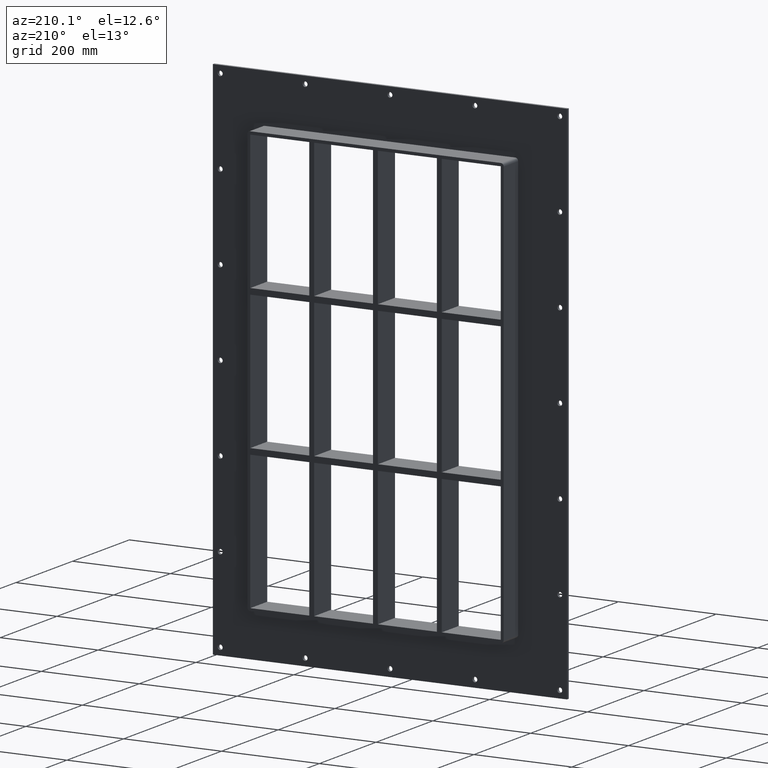
[diagram: clean part render]
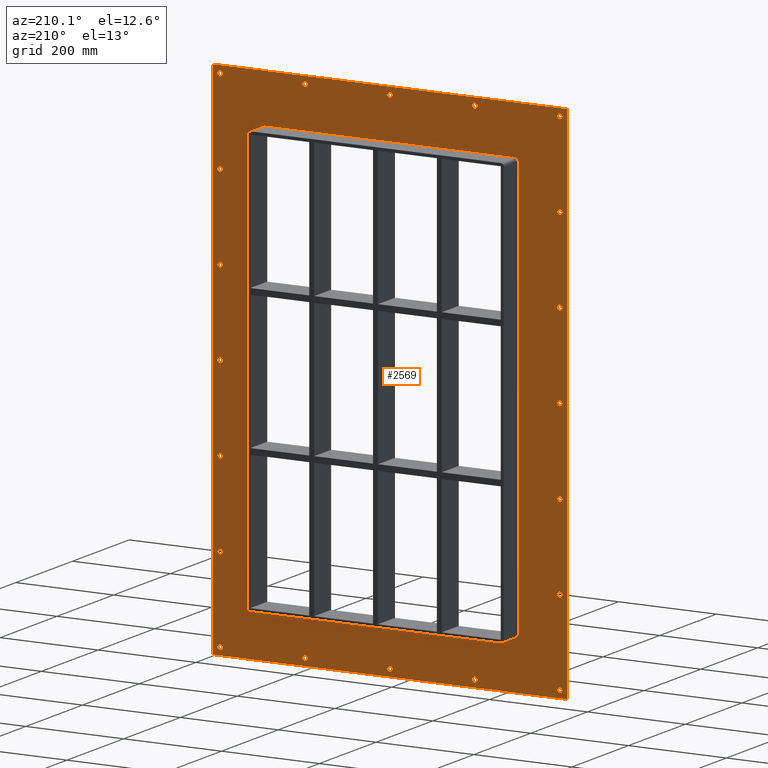
[diagram: same view with one face highlighted and labeled with its STEP entity id]
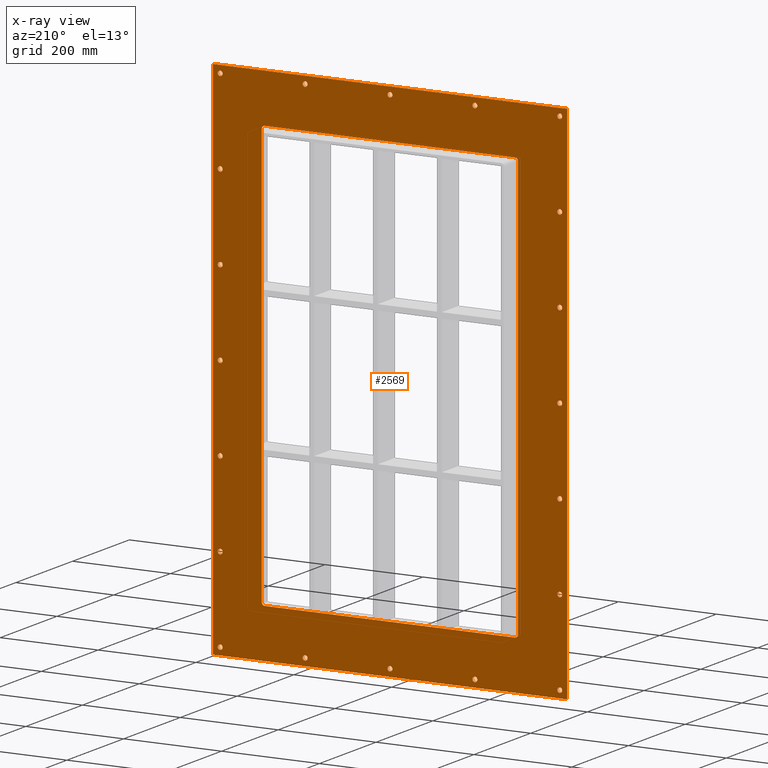
[diagram: x-ray of the same camera — body ghosted, the highlighted face saturated]
A machine part, auxiliary view. The second image highlights one B-rep face of the part: STEP entity #2569.
The next image is the same camera in x-ray: the body ghosted, the highlighted face saturated — about 0% of this face is hidden behind the body in this view.
In plain terms, the highlighted planar face has unit normal (0, 1, 0).
Its self-contained STEP definition (entity closure, byte-faithful):
#73=CARTESIAN_POINT('',(-352.0,5.999999999999943,-520.00000000000011));
#74=VERTEX_POINT('',#73);
#75=CARTESIAN_POINT('',(-347.0,5.999999999999943,-520.00000000000011));
#76=DIRECTION('',(0.0,-1.0,0.0));
#77=DIRECTION('',(1.0,0.0,0.0));
#78=AXIS2_PLACEMENT_3D('',#75,#76,#77);
#79=CIRCLE('',#78,5.0);
#80=EDGE_CURVE('',#74,#74,#79,.T.);
#101=CARTESIAN_POINT('',(342.0,5.999999999999943,-346.70000000000005));
#102=VERTEX_POINT('',#101);
#103=CARTESIAN_POINT('',(347.0,5.999999999999943,-346.70000000000005));
#104=DIRECTION('',(0.0,-1.0,0.0));
#105=DIRECTION('',(1.0,0.0,0.0));
#106=AXIS2_PLACEMENT_3D('',#103,#104,#105);
#107=CIRCLE('',#106,5.0);
#108=EDGE_CURVE('',#102,#102,#107,.T.);
#129=CARTESIAN_POINT('',(-352.0,5.999999999999943,-346.70000000000005));
#130=VERTEX_POINT('',#129);
#131=CARTESIAN_POINT('',(-347.0,5.999999999999943,-346.70000000000005));
#132=DIRECTION('',(0.0,-1.0,0.0));
#133=DIRECTION('',(1.0,0.0,0.0));
#134=AXIS2_PLACEMENT_3D('',#131,#132,#133);
#135=CIRCLE('',#134,5.0);
#136=EDGE_CURVE('',#130,#130,#135,.T.);
#157=CARTESIAN_POINT('',(342.0,5.999999999999943,-173.40000000000006));
#158=VERTEX_POINT('',#157);
#159=CARTESIAN_POINT('',(347.0,5.999999999999943,-173.40000000000006));
#160=DIRECTION('',(0.0,-1.0,0.0));
#161=DIRECTION('',(1.0,0.0,0.0));
#162=AXIS2_PLACEMENT_3D('',#159,#160,#161);
#163=CIRCLE('',#162,5.0);
#164=EDGE_CURVE('',#158,#158,#163,.T.);
#185=CARTESIAN_POINT('',(-352.0,5.999999999999943,-173.40000000000006));
#186=VERTEX_POINT('',#185);
#187=CARTESIAN_POINT('',(-347.0,5.999999999999943,-173.40000000000006));
#188=DIRECTION('',(0.0,-1.0,0.0));
#189=DIRECTION('',(1.0,0.0,0.0));
#190=AXIS2_PLACEMENT_3D('',#187,#188,#189);
#191=CIRCLE('',#190,5.0);
#192=EDGE_CURVE('',#186,#186,#191,.T.);
#213=CARTESIAN_POINT('',(342.0,5.999999999999943,-0.100000000000087));
#214=VERTEX_POINT('',#213);
#215=CARTESIAN_POINT('',(347.0,5.999999999999943,-0.100000000000087));
#216=DIRECTION('',(0.0,-1.0,0.0));
#217=DIRECTION('',(1.0,0.0,0.0));
#218=AXIS2_PLACEMENT_3D('',#215,#216,#217);
#219=CIRCLE('',#218,5.0);
#220=EDGE_CURVE('',#214,#214,#219,.T.);
#241=CARTESIAN_POINT('',(-352.0,5.999999999999943,-0.100000000000087));
#242=VERTEX_POINT('',#241);
#243=CARTESIAN_POINT('',(-347.0,5.999999999999943,-0.100000000000087));
#244=DIRECTION('',(0.0,-1.0,0.0));
#245=DIRECTION('',(1.0,0.0,0.0));
#246=AXIS2_PLACEMENT_3D('',#243,#244,#245);
#247=CIRCLE('',#246,5.0);
#248=EDGE_CURVE('',#242,#242,#247,.T.);
#269=CARTESIAN_POINT('',(342.0,5.999999999999943,173.20000000000005));
#270=VERTEX_POINT('',#269);
#271=CARTESIAN_POINT('',(347.0,5.999999999999943,173.20000000000005));
#272=DIRECTION('',(0.0,-1.0,0.0));
#273=DIRECTION('',(1.0,0.0,0.0));
#274=AXIS2_PLACEMENT_3D('',#271,#272,#273);
#275=CIRCLE('',#274,5.0);
#276=EDGE_CURVE('',#270,#270,#275,.T.);
#297=CARTESIAN_POINT('',(-352.0,5.999999999999943,173.20000000000005));
#298=VERTEX_POINT('',#297);
#299=CARTESIAN_POINT('',(-347.0,5.999999999999943,173.20000000000005));
#300=DIRECTION('',(0.0,-1.0,0.0));
#301=DIRECTION('',(1.0,0.0,0.0));
#302=AXIS2_PLACEMENT_3D('',#299,#300,#301);
#303=CIRCLE('',#302,5.0);
#304=EDGE_CURVE('',#298,#298,#303,.T.);
#325=CARTESIAN_POINT('',(342.0,5.999999999999943,346.50000000000006));
#326=VERTEX_POINT('',#325);
#327=CARTESIAN_POINT('',(347.0,5.999999999999943,346.50000000000006));
#328=DIRECTION('',(0.0,-1.0,0.0));
#329=DIRECTION('',(1.0,0.0,0.0));
#330=AXIS2_PLACEMENT_3D('',#327,#328,#329);
#331=CIRCLE('',#330,5.0);
#332=EDGE_CURVE('',#326,#326,#331,.T.);
#353=CARTESIAN_POINT('',(-352.0,5.999999999999943,346.50000000000006));
#354=VERTEX_POINT('',#353);
#355=CARTESIAN_POINT('',(-347.0,5.999999999999943,346.50000000000006));
#356=DIRECTION('',(0.0,-1.0,0.0));
#357=DIRECTION('',(1.0,0.0,0.0));
#358=AXIS2_PLACEMENT_3D('',#355,#356,#357);
#359=CIRCLE('',#358,5.0);
#360=EDGE_CURVE('',#354,#354,#359,.T.);
#381=CARTESIAN_POINT('',(-178.5,5.999999999999943,519.80000000000007));
#382=VERTEX_POINT('',#381);
#383=CARTESIAN_POINT('',(-173.5,5.999999999999943,519.80000000000007));
#384=DIRECTION('',(0.0,-1.0,0.0));
#385=DIRECTION('',(1.0,0.0,0.0));
#386=AXIS2_PLACEMENT_3D('',#383,#384,#385);
#387=CIRCLE('',#386,5.0);
#388=EDGE_CURVE('',#382,#382,#387,.T.);
#409=CARTESIAN_POINT('',(-178.5,5.999999999999943,-520.00000000000011));
#410=VERTEX_POINT('',#409);
#411=CARTESIAN_POINT('',(-173.5,5.999999999999943,-520.00000000000011));
#412=DIRECTION('',(0.0,-1.0,0.0));
#413=DIRECTION('',(1.0,0.0,0.0));
#414=AXIS2_PLACEMENT_3D('',#411,#412,#413);
#415=CIRCLE('',#414,5.0);
#416=EDGE_CURVE('',#410,#410,#415,.T.);
#437=CARTESIAN_POINT('',(-5.0,5.999999999999943,519.80000000000007));
#438=VERTEX_POINT('',#437);
#439=CARTESIAN_POINT('',(0.0,5.999999999999943,519.80000000000007));
#440=DIRECTION('',(0.0,-1.0,0.0));
#441=DIRECTION('',(1.0,0.0,0.0));
#442=AXIS2_PLACEMENT_3D('',#439,#440,#441);
#443=CIRCLE('',#442,5.0);
#444=EDGE_CURVE('',#438,#438,#443,.T.);
#465=CARTESIAN_POINT('',(-5.0,5.999999999999943,-520.00000000000011));
#466=VERTEX_POINT('',#465);
#467=CARTESIAN_POINT('',(0.0,5.999999999999943,-520.00000000000011));
#468=DIRECTION('',(0.0,-1.0,0.0));
#469=DIRECTION('',(1.0,0.0,0.0));
#470=AXIS2_PLACEMENT_3D('',#467,#468,#469);
#471=CIRCLE('',#470,5.0);
#472=EDGE_CURVE('',#466,#466,#471,.T.);
#493=CARTESIAN_POINT('',(168.5,5.999999999999943,519.80000000000007));
#494=VERTEX_POINT('',#493);
#495=CARTESIAN_POINT('',(173.5,5.999999999999943,519.80000000000007));
#496=DIRECTION('',(0.0,-1.0,0.0));
#497=DIRECTION('',(1.0,0.0,0.0));
#498=AXIS2_PLACEMENT_3D('',#495,#496,#497);
#499=CIRCLE('',#498,5.0);
#500=EDGE_CURVE('',#494,#494,#499,.T.);
#521=CARTESIAN_POINT('',(168.5,5.999999999999943,-520.00000000000011));
#522=VERTEX_POINT('',#521);
#523=CARTESIAN_POINT('',(173.5,5.999999999999943,-520.00000000000011));
#524=DIRECTION('',(0.0,-1.0,0.0));
#525=DIRECTION('',(1.0,0.0,0.0));
#526=AXIS2_PLACEMENT_3D('',#523,#524,#525);
#527=CIRCLE('',#526,5.0);
#528=EDGE_CURVE('',#522,#522,#527,.T.);
#549=CARTESIAN_POINT('',(342.0,5.999999999999943,-520.00000000000011));
#550=VERTEX_POINT('',#549);
#551=CARTESIAN_POINT('',(347.0,5.999999999999943,-520.00000000000011));
#552=DIRECTION('',(0.0,-1.0,0.0));
#553=DIRECTION('',(1.0,0.0,0.0));
#554=AXIS2_PLACEMENT_3D('',#551,#552,#553);
#555=CIRCLE('',#554,5.0);
#556=EDGE_CURVE('',#550,#550,#555,.T.);
#577=CARTESIAN_POINT('',(-352.0,5.999999999999943,519.80000000000007));
#578=VERTEX_POINT('',#577);
#579=CARTESIAN_POINT('',(-347.0,5.999999999999943,519.80000000000007));
#580=DIRECTION('',(0.0,-1.0,0.0));
#581=DIRECTION('',(1.0,0.0,0.0));
#582=AXIS2_PLACEMENT_3D('',#579,#580,#581);
#583=CIRCLE('',#582,5.0);
#584=EDGE_CURVE('',#578,#578,#583,.T.);
#605=CARTESIAN_POINT('',(342.0,5.999999999999943,519.80000000000007));
#606=VERTEX_POINT('',#605);
#607=CARTESIAN_POINT('',(347.0,5.999999999999943,519.80000000000007));
#608=DIRECTION('',(0.0,-1.0,0.0));
#609=DIRECTION('',(1.0,0.0,0.0));
#610=AXIS2_PLACEMENT_3D('',#607,#608,#609);
#611=CIRCLE('',#610,5.0);
#612=EDGE_CURVE('',#606,#606,#611,.T.);
#2400=CARTESIAN_POINT('',(-5.703353E-014,6.000000000000001,-3.802235E-014));
#2401=DIRECTION('',(0.0,1.0,0.0));
#2402=DIRECTION('',(0.0,0.0,1.0));
#2403=AXIS2_PLACEMENT_3D('',#2400,#2401,#2402);
#2404=PLANE('',#2403);
#2405=CARTESIAN_POINT('',(-362.0,6.000000000000001,535.00000000000011));
#2406=VERTEX_POINT('',#2405);
#2407=CARTESIAN_POINT('',(362.0,6.000000000000001,535.00000000000011));
#2408=VERTEX_POINT('',#2407);
#2409=CARTESIAN_POINT('',(-362.0,6.000000000000001,535.00000000000011));
#2410=DIRECTION('',(1.0,0.0,0.0));
#2411=VECTOR('',#2410,724.0);
#2412=LINE('',#2409,#2411);
#2413=EDGE_CURVE('',#2406,#2408,#2412,.T.);
#2414=ORIENTED_EDGE('',*,*,#2413,.T.);
#2415=CARTESIAN_POINT('',(362.0,6.000000000000001,-535.00000000000023));
#2416=VERTEX_POINT('',#2415);
#2417=CARTESIAN_POINT('',(361.99999999999994,6.000000000000001,535.00000000000011));
#2418=DIRECTION('',(0.0,0.0,-1.0));
#2419=VECTOR('',#2418,1070.0000000000002);
#2420=LINE('',#2417,#2419);
#2421=EDGE_CURVE('',#2408,#2416,#2420,.T.);
#2422=ORIENTED_EDGE('',*,*,#2421,.T.);
#2423=CARTESIAN_POINT('',(-362.0,6.000000000000001,-535.00000000000023));
#2424=VERTEX_POINT('',#2423);
#2425=CARTESIAN_POINT('',(361.99999999999994,6.000000000000001,-535.00000000000011));
#2426=DIRECTION('',(-1.0,0.0,0.0));
#2427=VECTOR('',#2426,724.0);
#2428=LINE('',#2425,#2427);
#2429=EDGE_CURVE('',#2416,#2424,#2428,.T.);
#2430=ORIENTED_EDGE('',*,*,#2429,.T.);
#2431=CARTESIAN_POINT('',(-362.0,6.000000000000001,-535.00000000000011));
#2432=DIRECTION('',(0.0,0.0,1.0));
#2433=VECTOR('',#2432,1070.0000000000002);
#2434=LINE('',#2431,#2433);
#2435=EDGE_CURVE('',#2424,#2406,#2434,.T.);
#2436=ORIENTED_EDGE('',*,*,#2435,.T.);
#2437=EDGE_LOOP('',(#2414,#2422,#2430,#2436));
#2438=FACE_OUTER_BOUND('',#2437,.T.);
#2439=ORIENTED_EDGE('',*,*,#80,.T.);
#2440=EDGE_LOOP('',(#2439));
#2441=FACE_BOUND('',#2440,.T.);
#2442=ORIENTED_EDGE('',*,*,#108,.T.);
#2443=EDGE_LOOP('',(#2442));
#2444=FACE_BOUND('',#2443,.T.);
#2445=ORIENTED_EDGE('',*,*,#136,.T.);
#2446=EDGE_LOOP('',(#2445));
#2447=FACE_BOUND('',#2446,.T.);
#2448=ORIENTED_EDGE('',*,*,#164,.T.);
#2449=EDGE_LOOP('',(#2448));
#2450=FACE_BOUND('',#2449,.T.);
#2451=ORIENTED_EDGE('',*,*,#192,.T.);
#2452=EDGE_LOOP('',(#2451));
#2453=FACE_BOUND('',#2452,.T.);
#2454=ORIENTED_EDGE('',*,*,#220,.T.);
#2455=EDGE_LOOP('',(#2454));
#2456=FACE_BOUND('',#2455,.T.);
#2457=ORIENTED_EDGE('',*,*,#248,.T.);
#2458=EDGE_LOOP('',(#2457));
#2459=FACE_BOUND('',#2458,.T.);
#2460=ORIENTED_EDGE('',*,*,#276,.T.);
#2461=EDGE_LOOP('',(#2460));
#2462=FACE_BOUND('',#2461,.T.);
#2463=ORIENTED_EDGE('',*,*,#304,.T.);
#2464=EDGE_LOOP('',(#2463));
#2465=FACE_BOUND('',#2464,.T.);
#2466=ORIENTED_EDGE('',*,*,#332,.T.);
#2467=EDGE_LOOP('',(#2466));
#2468=FACE_BOUND('',#2467,.T.);
#2469=ORIENTED_EDGE('',*,*,#360,.T.);
#2470=EDGE_LOOP('',(#2469));
#2471=FACE_BOUND('',#2470,.T.);
#2472=ORIENTED_EDGE('',*,*,#388,.T.);
#2473=EDGE_LOOP('',(#2472));
#2474=FACE_BOUND('',#2473,.T.);
#2475=ORIENTED_EDGE('',*,*,#416,.T.);
#2476=EDGE_LOOP('',(#2475));
#2477=FACE_BOUND('',#2476,.T.);
#2478=ORIENTED_EDGE('',*,*,#444,.T.);
#2479=EDGE_LOOP('',(#2478));
#2480=FACE_BOUND('',#2479,.T.);
#2481=ORIENTED_EDGE('',*,*,#472,.T.);
#2482=EDGE_LOOP('',(#2481));
#2483=FACE_BOUND('',#2482,.T.);
#2484=ORIENTED_EDGE('',*,*,#500,.T.);
#2485=EDGE_LOOP('',(#2484));
#2486=FACE_BOUND('',#2485,.T.);
#2487=ORIENTED_EDGE('',*,*,#528,.T.);
#2488=EDGE_LOOP('',(#2487));
#2489=FACE_BOUND('',#2488,.T.);
#2490=ORIENTED_EDGE('',*,*,#556,.T.);
#2491=EDGE_LOOP('',(#2490));
#2492=FACE_BOUND('',#2491,.T.);
#2493=ORIENTED_EDGE('',*,*,#584,.T.);
#2494=EDGE_LOOP('',(#2493));
#2495=FACE_BOUND('',#2494,.T.);
#2496=ORIENTED_EDGE('',*,*,#612,.T.);
#2497=EDGE_LOOP('',(#2496));
#2498=FACE_BOUND('',#2497,.T.);
#2499=CARTESIAN_POINT('',(-256.0,6.000000000000001,-435.0));
#2500=VERTEX_POINT('',#2499);
#2501=CARTESIAN_POINT('',(-262.0,6.000000000000001,-429.00000000000006));
#2502=VERTEX_POINT('',#2501);
#2503=CARTESIAN_POINT('',(-256.0,6.000000000000001,-429.00000000000006));
#2504=DIRECTION('',(0.0,1.0,0.0));
#2505=DIRECTION('',(-0.707106781186552,0.0,-0.707106781186543));
#2506=AXIS2_PLACEMENT_3D('',#2503,#2504,#2505);
#2507=CIRCLE('',#2506,6.000000000000001);
#2508=EDGE_CURVE('',#2500,#2502,#2507,.T.);
#2509=ORIENTED_EDGE('',*,*,#2508,.F.);
#2510=CARTESIAN_POINT('',(256.0,6.000000000000001,-435.0));
#2511=VERTEX_POINT('',#2510);
#2512=CARTESIAN_POINT('',(256.0,6.000000000000001,-435.0));
#2513=DIRECTION('',(-1.0,0.0,0.0));
#2514=VECTOR('',#2513,512.0);
#2515=LINE('',#2512,#2514);
#2516=EDGE_CURVE('',#2511,#2500,#2515,.T.);
#2517=ORIENTED_EDGE('',*,*,#2516,.F.);
#2518=CARTESIAN_POINT('',(262.0,6.000000000000001,-428.99999999999989));
#2519=VERTEX_POINT('',#2518);
#2520=CARTESIAN_POINT('',(256.0,6.000000000000001,-428.99999999999989));
#2521=DIRECTION('',(0.0,1.0,0.0));
#2522=DIRECTION('',(0.707106781186543,0.0,-0.707106781186552));
#2523=AXIS2_PLACEMENT_3D('',#2520,#2521,#2522);
#2524=CIRCLE('',#2523,6.0);
#2525=EDGE_CURVE('',#2519,#2511,#2524,.T.);
#2526=ORIENTED_EDGE('',*,*,#2525,.F.);
#2527=CARTESIAN_POINT('',(262.0,6.000000000000001,429.00000000000011));
#2528=VERTEX_POINT('',#2527);
#2529=CARTESIAN_POINT('',(262.0,6.000000000000001,429.00000000000011));
#2530=DIRECTION('',(0.0,0.0,-1.0));
#2531=VECTOR('',#2530,858.0);
#2532=LINE('',#2529,#2531);
#2533=EDGE_CURVE('',#2528,#2519,#2532,.T.);
#2534=ORIENTED_EDGE('',*,*,#2533,.F.);
#2535=CARTESIAN_POINT('',(256.0,6.000000000000001,435.00000000000011));
#2536=VERTEX_POINT('',#2535);
#2537=CARTESIAN_POINT('',(256.0,6.000000000000001,429.00000000000011));
#2538=DIRECTION('',(0.0,1.0,0.0));
#2539=DIRECTION('',(0.707106781186543,0.0,0.707106781186552));
#2540=AXIS2_PLACEMENT_3D('',#2537,#2538,#2539);
#2541=CIRCLE('',#2540,6.0);
#2542=EDGE_CURVE('',#2536,#2528,#2541,.T.);
#2543=ORIENTED_EDGE('',*,*,#2542,.F.);
#2544=CARTESIAN_POINT('',(-256.0,6.000000000000001,435.00000000000011));
#2545=VERTEX_POINT('',#2544);
#2546=CARTESIAN_POINT('',(-256.0,6.000000000000001,435.00000000000011));
#2547=DIRECTION('',(1.0,0.0,0.0));
#2548=VECTOR('',#2547,511.99999999999994);
#2549=LINE('',#2546,#2548);
#2550=EDGE_CURVE('',#2545,#2536,#2549,.T.);
#2551=ORIENTED_EDGE('',*,*,#2550,.F.);
#2552=CARTESIAN_POINT('',(-262.0,6.000000000000001,429.00000000000006));
#2553=VERTEX_POINT('',#2552);
#2554=CARTESIAN_POINT('',(-256.0,6.000000000000001,429.00000000000006));
#2555=DIRECTION('',(0.0,1.0,0.0));
#2556=DIRECTION('',(-0.707106781186543,0.0,0.707106781186552));
#2557=AXIS2_PLACEMENT_3D('',#2554,#2555,#2556);
#2558=CIRCLE('',#2557,6.0);
#2559=EDGE_CURVE('',#2553,#2545,#2558,.T.);
#2560=ORIENTED_EDGE('',*,*,#2559,.F.);
#2561=CARTESIAN_POINT('',(-262.0,6.000000000000001,-429.00000000000006));
#2562=DIRECTION('',(0.0,0.0,1.0));
#2563=VECTOR('',#2562,858.0);
#2564=LINE('',#2561,#2563);
#2565=EDGE_CURVE('',#2502,#2553,#2564,.T.);
#2566=ORIENTED_EDGE('',*,*,#2565,.F.);
#2567=EDGE_LOOP('',(#2509,#2517,#2526,#2534,#2543,#2551,#2560,#2566));
#2568=FACE_BOUND('',#2567,.T.);
#2569=ADVANCED_FACE('',(#2438,#2441,#2444,#2447,#2450,#2453,#2456,#2459,#2462,#2465,#2468,#2471,#2474,#2477,#2480,#2483,#2486,#2489,#2492,#2495,#2498,#2568),#2404,.T.);